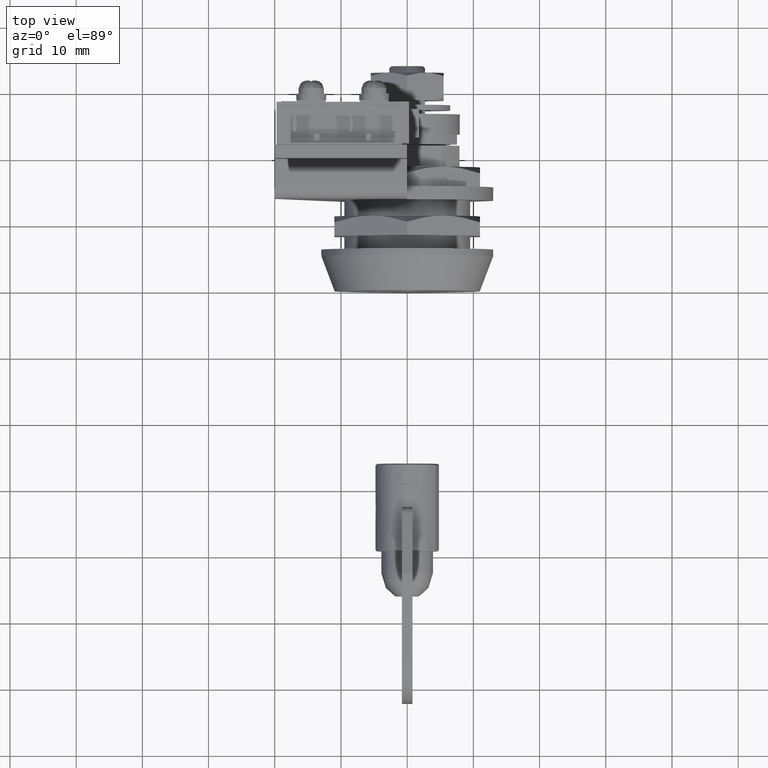
[diagram: clean part render]
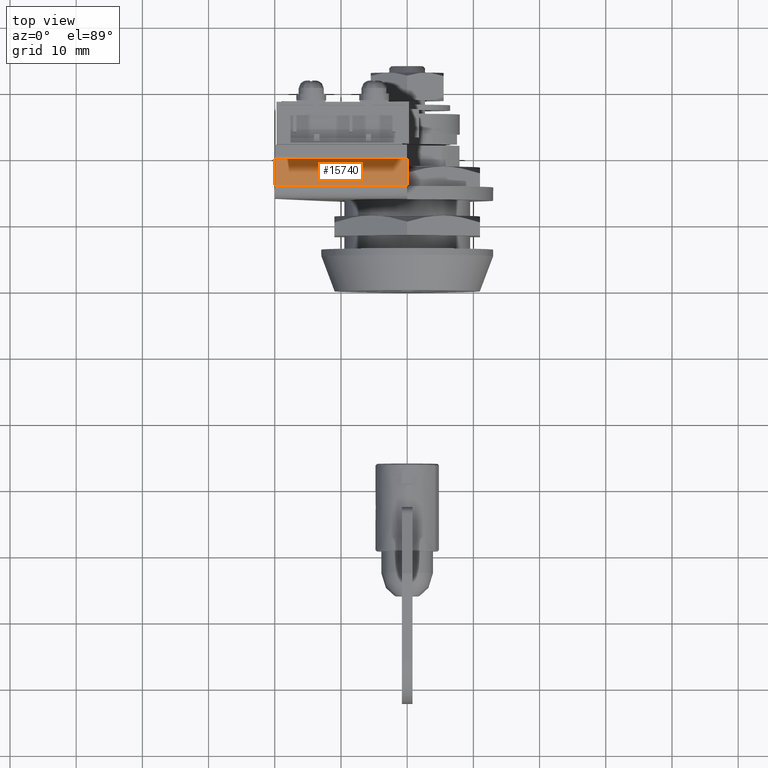
[diagram: same view with one face highlighted and labeled with its STEP entity id]
A machine part, top view. The second image highlights one B-rep face of the part: STEP entity #15740.
In plain terms, the highlighted face is a freeform B-spline surface patch.
Its self-contained STEP definition (entity closure, byte-faithful):
#15281=CARTESIAN_POINT('',(15.699997000000250,20.0,17.500000000000000));
#15282=VERTEX_POINT('',#15281);
#15303=CARTESIAN_POINT('',(15.699997000000250,0.0,17.500000000000000));
#15304=VERTEX_POINT('',#15303);
#15320=CARTESIAN_POINT('',(15.699997000000250,20.0,17.500000000000000));
#15321=CARTESIAN_POINT('',(15.699997000000250,0.0,17.500000000000000));
#15322=QUASI_UNIFORM_CURVE('',1,(#15320,#15321),.UNSPECIFIED.,.F.,.U.);
#15323=EDGE_CURVE('',#15282,#15304,#15322,.T.);
#15713=CARTESIAN_POINT('',(19.899796954698289,-0.998999961236120,17.500000000000000));
#15714=CARTESIAN_POINT('',(15.500196902251020,-0.998999961236120,17.500000000000000));
#15715=CARTESIAN_POINT('',(19.899796954698289,20.999000497677919,17.500000000000000));
#15716=CARTESIAN_POINT('',(15.500196902251020,20.999000497677919,17.500000000000000));
#15717=B_SPLINE_SURFACE_WITH_KNOTS('',1,1,((#15713,#15715),(#15714,#15716)),.UNSPECIFIED.,.F.,.F.,.U.,(2,2),(2,2),(0.0,4.399600052447267),(0.0,21.998000458914039),.UNSPECIFIED.);
#15718=CARTESIAN_POINT('',(19.699997000000199,20.0,17.500000000000000));
#15719=VERTEX_POINT('',#15718);
#15720=CARTESIAN_POINT('',(19.699997000000199,20.0,17.500000000000000));
#15721=CARTESIAN_POINT('',(15.699997000000250,20.0,17.500000000000000));
#15722=QUASI_UNIFORM_CURVE('',1,(#15720,#15721),.UNSPECIFIED.,.F.,.U.);
#15723=EDGE_CURVE('',#15719,#15282,#15722,.T.);
#15724=ORIENTED_EDGE('',*,*,#15723,.T.);
#15725=ORIENTED_EDGE('',*,*,#15323,.T.);
#15726=CARTESIAN_POINT('',(19.699997000000199,0.0,17.500000000000000));
#15727=VERTEX_POINT('',#15726);
#15728=CARTESIAN_POINT('',(15.699997000000250,0.0,17.500000000000000));
#15729=CARTESIAN_POINT('',(19.699997000000199,0.0,17.500000000000000));
#15730=QUASI_UNIFORM_CURVE('',1,(#15728,#15729),.UNSPECIFIED.,.F.,.U.);
#15731=EDGE_CURVE('',#15304,#15727,#15730,.T.);
#15732=ORIENTED_EDGE('',*,*,#15731,.T.);
#15733=CARTESIAN_POINT('',(19.699997000000199,0.0,17.500000000000000));
#15734=CARTESIAN_POINT('',(19.699997000000199,20.0,17.500000000000000));
#15735=QUASI_UNIFORM_CURVE('',1,(#15733,#15734),.UNSPECIFIED.,.F.,.U.);
#15736=EDGE_CURVE('',#15727,#15719,#15735,.T.);
#15737=ORIENTED_EDGE('',*,*,#15736,.T.);
#15738=EDGE_LOOP('',(#15724,#15725,#15732,#15737));
#15739=FACE_OUTER_BOUND('',#15738,.T.);
#15740=ADVANCED_FACE('',(#15739),#15717,.F.);